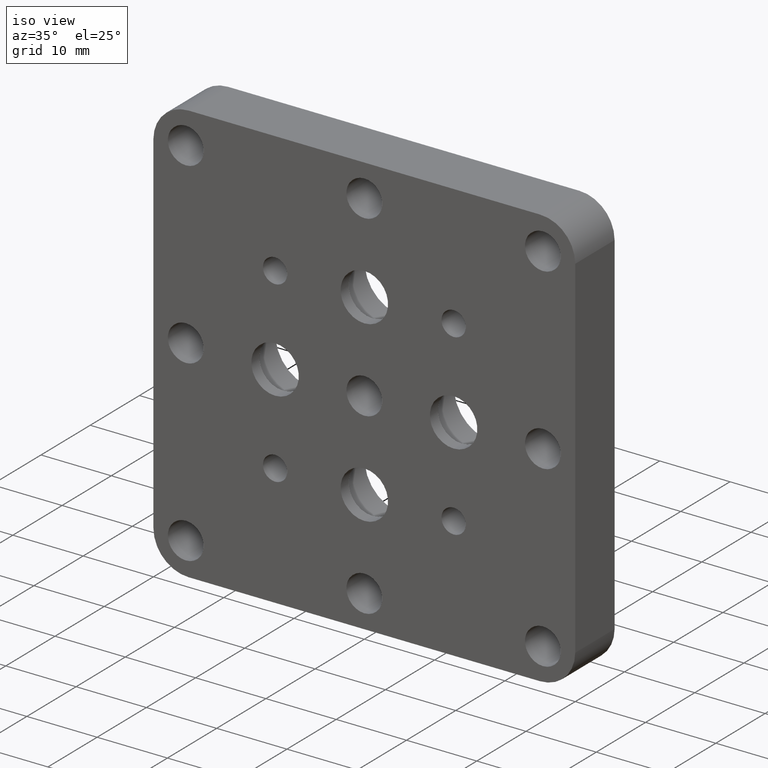
[diagram: clean part render]
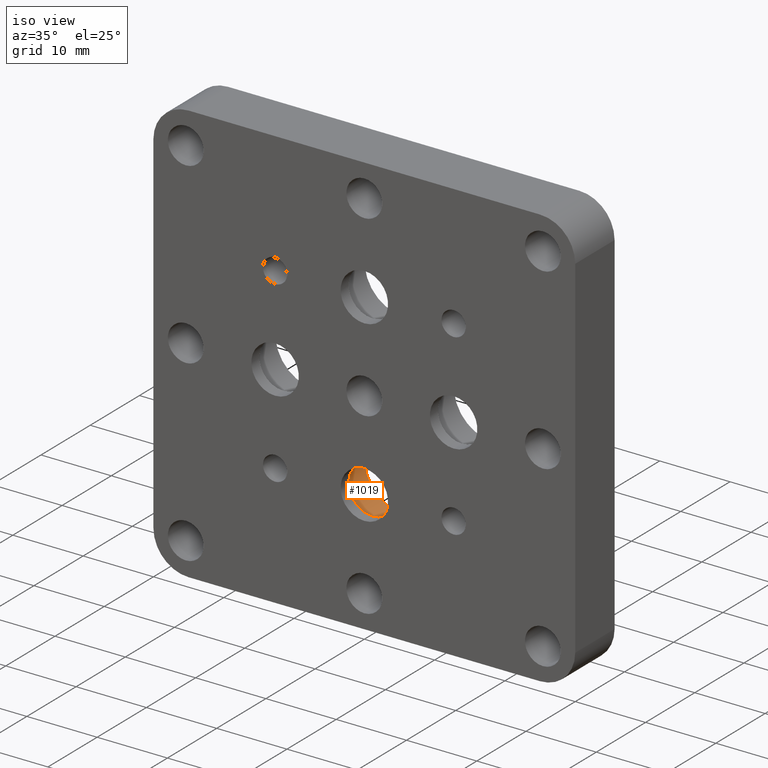
[diagram: same view with one face highlighted and labeled with its STEP entity id]
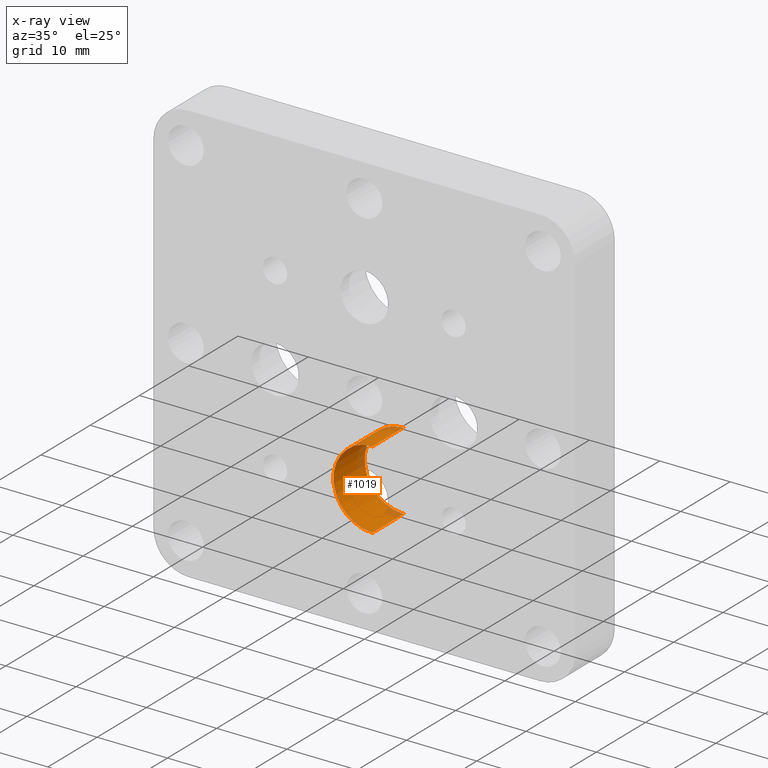
[diagram: x-ray of the same camera — body ghosted, the highlighted face saturated]
A machine part, iso view. The second image highlights one B-rep face of the part: STEP entity #1019.
The next image is the same camera in x-ray: the body ghosted, the highlighted face saturated — about 10% of this face is hidden behind the body in this view.
In plain terms, the highlighted cylindrical surface (partial cylindrical patch) has radius 5.5562 mm, axis along (-0, 1, -0).
Its self-contained STEP definition (entity closure, byte-faithful):
#51 = DIRECTION ( 'NONE',  ( 0.0000000000000000000, 0.0000000000000000000, 1.000000000000000000 ) ) ;
#56 = EDGE_CURVE ( 'NONE', #416, #257, #131, .T. ) ;
#105 = CARTESIAN_POINT ( 'NONE',  ( 0.0000000000000000000, 1.650000000000000400, -7.143750000000001600 ) ) ;
#131 = CIRCLE ( 'NONE', #938, 5.556249999999997700 ) ;
#153 = CARTESIAN_POINT ( 'NONE',  ( 0.0000000000000000000, 8.000000000000000000, -7.143750000000000700 ) ) ;
#242 = LINE ( 'NONE', #473, #1800 ) ;
#257 = VERTEX_POINT ( 'NONE', #105 ) ;
#304 = AXIS2_PLACEMENT_3D ( 'NONE', #1260, #680, #960 ) ;
#416 = VERTEX_POINT ( 'NONE', #1539 ) ;
#422 = EDGE_CURVE ( 'NONE', #257, #483, #1645, .T. ) ;
#433 = DIRECTION ( 'NONE',  ( 0.0000000000000000000, 0.0000000000000000000, 1.000000000000000000 ) ) ;
#473 = CARTESIAN_POINT ( 'NONE',  ( 6.804443777762480100E-016, 8.000000000000000000, -18.25624999999999800 ) ) ;
#477 = DIRECTION ( 'NONE',  ( -0.0000000000000000000, 1.000000000000000000, -0.0000000000000000000 ) ) ;
#483 = VERTEX_POINT ( 'NONE', #153 ) ;
#651 = ORIENTED_EDGE ( 'NONE', *, *, #1179, .T. ) ;
#657 = AXIS2_PLACEMENT_3D ( 'NONE', #1807, #1510, #433 ) ;
#680 = DIRECTION ( 'NONE',  ( -0.0000000000000000000, 1.000000000000000000, -0.0000000000000000000 ) ) ;
#776 = VECTOR ( 'NONE', #477, 1000.000000000000000 ) ;
#802 = CARTESIAN_POINT ( 'NONE',  ( 0.0000000000000000000, 1.650000000000000400, -12.69999999999999900 ) ) ;
#833 = VERTEX_POINT ( 'NONE', #1756 ) ;
#911 = EDGE_LOOP ( 'NONE', ( #924, #1791, #651, #1216 ) ) ;
#924 = ORIENTED_EDGE ( 'NONE', *, *, #56, .F. ) ;
#937 = DIRECTION ( 'NONE',  ( -0.0000000000000000000, 1.000000000000000000, -0.0000000000000000000 ) ) ;
#938 = AXIS2_PLACEMENT_3D ( 'NONE', #802, #937, #51 ) ;
#960 = DIRECTION ( 'NONE',  ( 0.0000000000000000000, 0.0000000000000000000, 1.000000000000000000 ) ) ;
#1019 = ADVANCED_FACE ( 'NONE', ( #1201 ), #1268, .F. ) ;
#1179 = EDGE_CURVE ( 'NONE', #833, #483, #1240, .T. ) ;
#1201 = FACE_OUTER_BOUND ( 'NONE', #911, .T. ) ;
#1216 = ORIENTED_EDGE ( 'NONE', *, *, #422, .F. ) ;
#1240 = CIRCLE ( 'NONE', #304, 5.556249999999998600 ) ;
#1260 = CARTESIAN_POINT ( 'NONE',  ( 0.0000000000000000000, 8.000000000000000000, -12.69999999999999900 ) ) ;
#1268 = CYLINDRICAL_SURFACE ( 'NONE', #657, 5.556249999999998600 ) ;
#1510 = DIRECTION ( 'NONE',  ( -0.0000000000000000000, 1.000000000000000000, -0.0000000000000000000 ) ) ;
#1533 = DIRECTION ( 'NONE',  ( -0.0000000000000000000, 1.000000000000000000, -0.0000000000000000000 ) ) ;
#1539 = CARTESIAN_POINT ( 'NONE',  ( 6.804443777762479200E-016, 1.650000000000000400, -18.25624999999999800 ) ) ;
#1597 = EDGE_CURVE ( 'NONE', #416, #833, #242, .T. ) ;
#1645 = LINE ( 'NONE', #1824, #776 ) ;
#1756 = CARTESIAN_POINT ( 'NONE',  ( 6.804443777762480100E-016, 8.000000000000000000, -18.25624999999999800 ) ) ;
#1791 = ORIENTED_EDGE ( 'NONE', *, *, #1597, .T. ) ;
#1800 = VECTOR ( 'NONE', #1533, 1000.000000000000000 ) ;
#1807 = CARTESIAN_POINT ( 'NONE',  ( 0.0000000000000000000, 8.000000000000000000, -12.69999999999999900 ) ) ;
#1824 = CARTESIAN_POINT ( 'NONE',  ( 0.0000000000000000000, 8.000000000000000000, -7.143750000000000700 ) ) ;